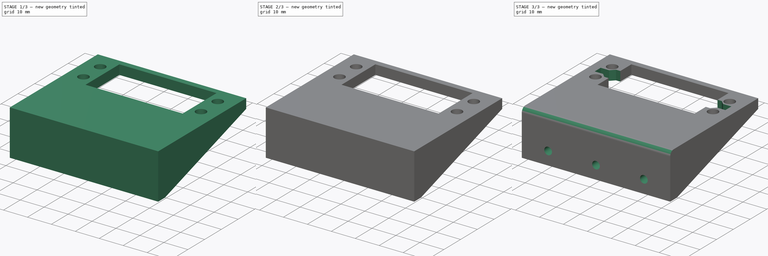
[diagram: build sequence overview — one tinted view per stage of 3, left to right]
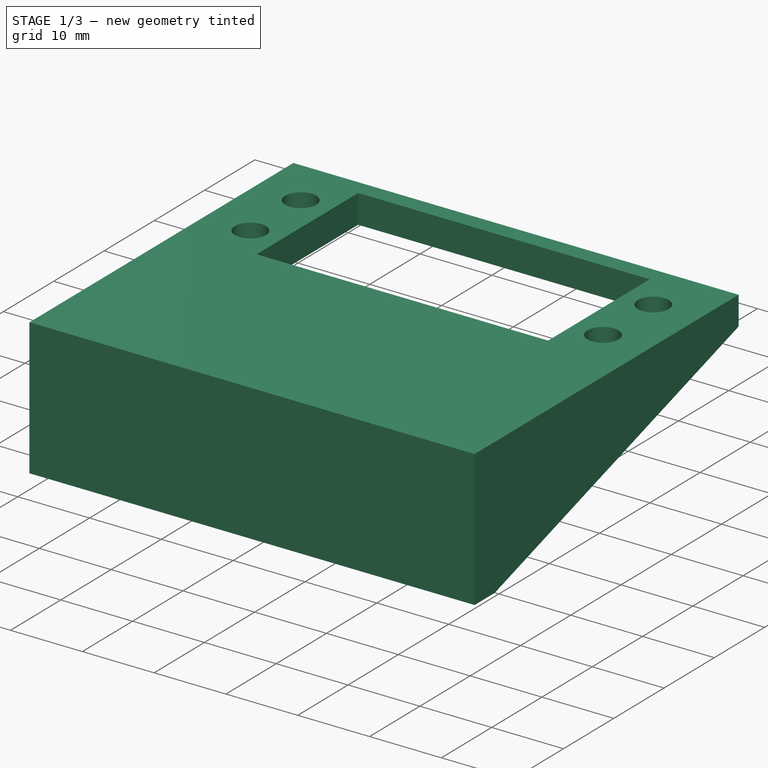
[diagram: stage 1 of 3 — iso view after this stage's code; geometry added in this stage tinted green]
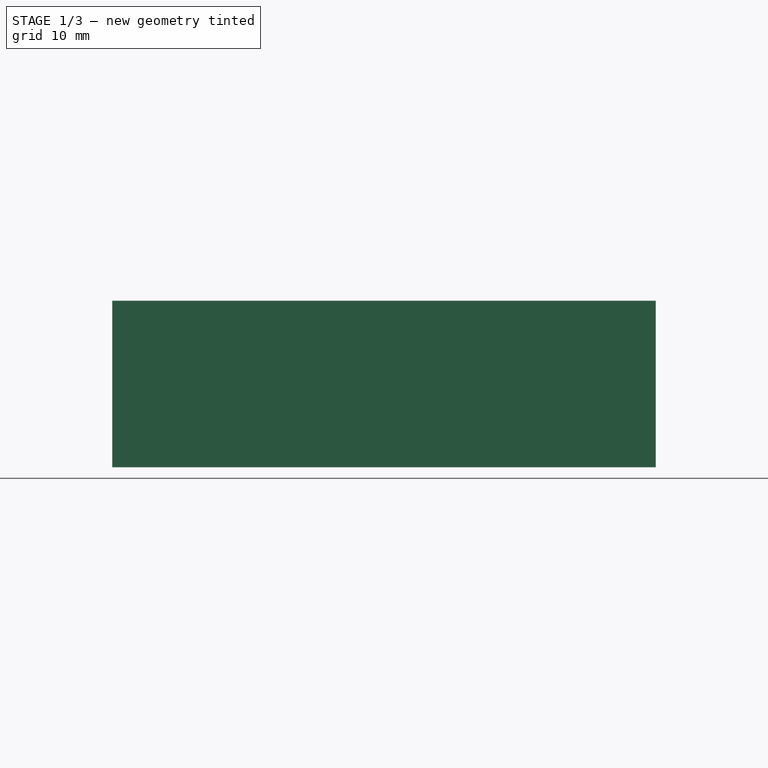
[diagram: stage 1 of 3 — front view after this stage's code; geometry added in this stage tinted green]
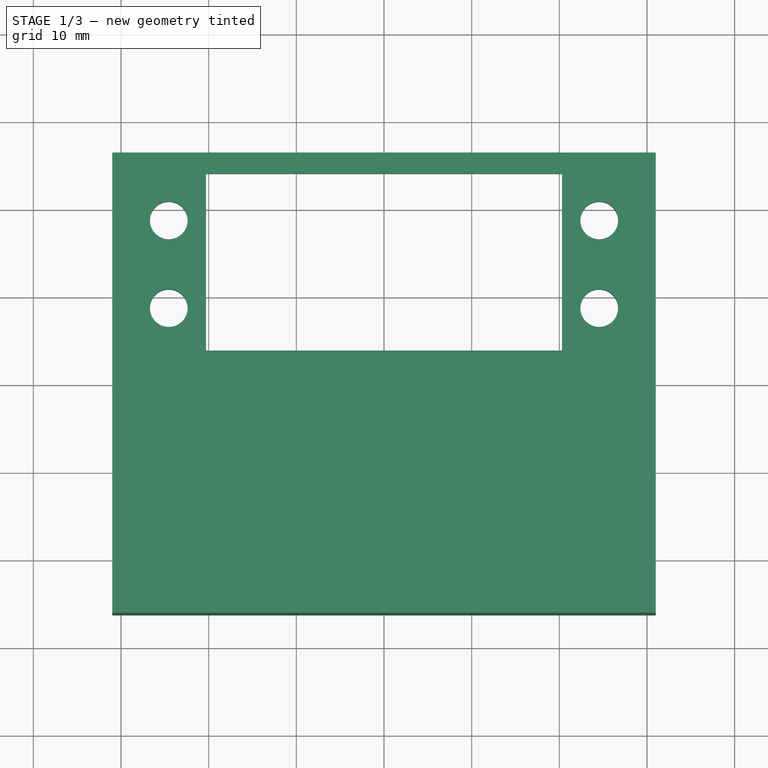
[diagram: stage 1 of 3 — top view after this stage's code; geometry added in this stage tinted green]
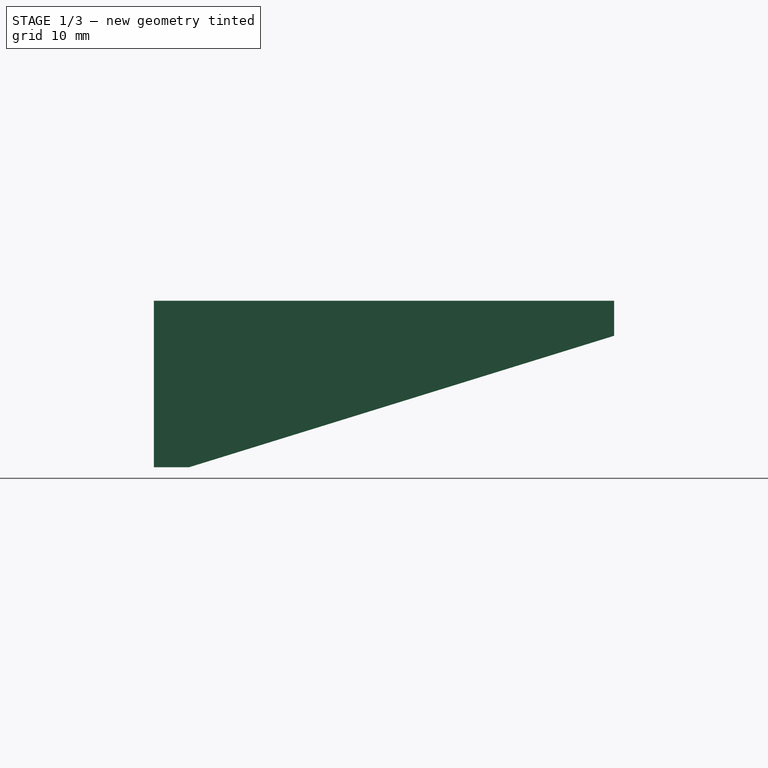
[diagram: stage 1 of 3 — right view after this stage's code; geometry added in this stage tinted green]
FCSTD DOCUMENT  (FreeCAD 1.0R39109 (Git))
Label: servo_support
License: All rights reserved
LicenseURL: http://en.wikipedia.org/wiki/All_rights_reserved
objects: Sketcher::SketchObject×5, PartDesign::Pad×3, PartDesign::Fillet×2, PartDesign::Pocket×2, PartDesign::Mirrored×1, PartDesign::Body×1
note: 34 computed .brp shape members not serialized (recipe doc carries the construction recipe); baked Part::Feature solids carry a one-line shape summary decoded from their .brp

FEATURE [Sketcher::SketchObject] Sketch
  ArcFitTolerance = 1e-06
  AttachmentSupport = -> [XY_Plane]
  FullyConstrained = true
  MakeInternals = false
  MapMode = 5
  sketch-geometry (21):
    g0: LineSegment StartX=-31 StartY=26.25 StartZ=0 EndX=-31 EndY=-26.25 EndZ=0
    g1: LineSegment StartX=-31 StartY=-26.25 StartZ=0 EndX=31 EndY=-26.25 EndZ=0
    g2: LineSegment StartX=31 StartY=-26.25 StartZ=0 EndX=31 EndY=26.25 EndZ=0
    g3: LineSegment StartX=31 StartY=26.25 StartZ=0 EndX=-31 EndY=26.25 EndZ=0
    g4: GeomPoint [constr] X=0 Y=0 Z=0
    g5: LineSegment [constr] StartX=0 StartY=26.25 StartZ=0 EndX=0 EndY=1.25 EndZ=0
    g6: Circle CenterX=-24.55 CenterY=18.5 CenterZ=0 NormalX=0 NormalY=0 NormalZ=1 AngleXU=0 Radius=2.15
    g7: Circle CenterX=-24.55 CenterY=8.5 CenterZ=0 NormalX=0 NormalY=0 NormalZ=1 AngleXU=0 Radius=2.15
    g8: Circle CenterX=24.55 CenterY=18.5 CenterZ=0 NormalX=0 NormalY=0 NormalZ=1 AngleXU=0 Radius=2.15
    g9: Circle CenterX=24.55 CenterY=8.5 CenterZ=0 NormalX=0 NormalY=0 NormalZ=1 AngleXU=0 Radius=2.15
    g10: LineSegment [constr] StartX=-24.55 StartY=18.5 StartZ=0 EndX=-24.55 EndY=8.5 EndZ=0
    g11: LineSegment [constr] StartX=-24.55 StartY=8.5 StartZ=0 EndX=24.55 EndY=8.5 EndZ=0
    g12: LineSegment [constr] StartX=24.55 StartY=8.5 StartZ=0 EndX=24.55 EndY=18.5 EndZ=0
    g13: LineSegment [constr] StartX=24.55 StartY=18.5 StartZ=0 EndX=-24.55 EndY=18.5 EndZ=0
    g14: LineSegment [constr] StartX=-27.8 StartY=25.75 StartZ=0 EndX=27.8 EndY=25.75 EndZ=0
    g15: GeomPoint [constr] X=0 Y=13.75 Z=0
    g16: LineSegment StartX=-20.3 StartY=23.85 StartZ=0 EndX=-20.3 EndY=3.65 EndZ=0
    g17: LineSegment StartX=-20.3 StartY=3.65 StartZ=0 EndX=20.3 EndY=3.65 EndZ=0
    g18: LineSegment StartX=20.3 StartY=3.65 StartZ=0 EndX=20.3 EndY=23.85 EndZ=0
    g19: LineSegment StartX=20.3 StartY=23.85 StartZ=0 EndX=-20.3 EndY=23.85 EndZ=0
    g20: GeomPoint [constr] X=0 Y=13.75 Z=0
  constraints (50):
    c: Coincident(g0,g1)
    c: Coincident(g1,g2)
    c: Coincident(g2,g3)
    c: Coincident(g3,g0)
    c: Vertical(g0)
    c: Vertical(g2)
    c: Horizontal(g1)
    c: Horizontal(g3)
    c: Symmetric(g2,g0,g4)
    c: Coincident(g4,g-1)
    c: DistanceX(g3,g3) = 62
    c: Symmetric(g3,g3,g5)
    c: PointOnObject(g5,g-2)
    c: DistanceY(g5,g5) = 25
    c: Equal(g6,g7)
    c: Equal(g7,g9)
    c: Equal(g9,g8)
    c: Coincident(g10,g6)
    c: Coincident(g10,g7)
    c: Vertical(g10)
    c: Coincident(g10,g11)
    c: Coincident(g11,g9)
    c: Horizontal(g11)
    c: Coincident(g11,g12)
    c: Coincident(g12,g8)
    c: Vertical(g12)
    c: Coincident(g12,g13)
    c: Coincident(g13,g10)
    c: Radius(g8) = 2.15
    c: Symmetric(g14,g14,g-2)
    c: DistanceX(g14,g14) = 55.6
    c: DistanceY(g14,g2) = 0.5
    c: DistanceX(g8,g14) = 3.25
    c: Symmetric(g6,g8,g-2)
    c: DistanceY(g8,g14) = 7.25
    c: DistanceY(g5,g9) = 7.25
    c: Symmetric(g5,g5,g15)
    c: Coincident(g16,g17)
    c: Coincident(g17,g18)
    c: Coincident(g18,g19)
    c: Coincident(g19,g16)
    c: Vertical(g16)
    c: Vertical(g18)
    c: Horizontal(g17)
    c: Horizontal(g19)
    c: Symmetric(g18,g16,g20)
    c: Coincident(g20,g15)
    c: DistanceY(g18,g18) = 20.2
    c: DistanceX(g19,g19) = 40.6
    c: DistanceY(g1,g15) = 40
FEATURE [PartDesign::Pad] Pad  label="BasePad"
  Direction = (0,0,1)
  Length = 4
  Length2 = 10
  Profile = -> Sketch
  ReferenceAxis = -> Sketch [N_Axis]
  Refine = true
  Suppressed = false
  Type = 0
FEATURE [Sketcher::SketchObject] Sketch001
  ArcFitTolerance = 1e-06
  AttachmentSupport = -> [Pad]
  ExternalGeometry = -> [Pad]
  FullyConstrained = true
  MakeInternals = false
  MapMode = 5
  Placement = pos=(0,0,0) rot=(1,0,0;3.14159rad)
  sketch-geometry (4):
    g0: LineSegment StartX=-31 StartY=26.25 StartZ=0 EndX=-31 EndY=22.25 EndZ=0
    g1: LineSegment StartX=-31 StartY=22.25 StartZ=0 EndX=31 EndY=22.25 EndZ=0
    g2: LineSegment StartX=31 StartY=22.25 StartZ=0 EndX=31 EndY=26.25 EndZ=0
    g3: LineSegment StartX=31 StartY=26.25 StartZ=0 EndX=-31 EndY=26.25 EndZ=0
  constraints (11):
    c: Coincident(g0,g1)
    c: Coincident(g1,g2)
    c: Coincident(g2,g3)
    c: Coincident(g3,g0)
    c: Vertical(g0)
    c: Vertical(g2)
    c: Horizontal(g1)
    c: Horizontal(g3)
    c: Coincident(g0,g-3)
    c: Vertical(g-3,g1)
    c: DistanceY(g2,g2) = 4
FEATURE [PartDesign::Pad] Pad001  label="PlatformPad"
  BaseFeature = -> Pad
  Direction = (0,0,-1)
  Length = 15
  Length2 = 10
  Profile = -> Sketch001
  ReferenceAxis = -> Sketch001 [N_Axis]
  Refine = true
  Suppressed = false
  Type = 0
FEATURE [Sketcher::SketchObject] Sketch002
  ArcFitTolerance = 1e-06
  AttachmentSupport = -> [Pad001]
  ExternalGeometry = -> [Pad001]
  FullyConstrained = true
  MakeInternals = false
  MapMode = 5
  Placement = pos=(31,0,0) rot=(0.57735,0.57735,0.57735;2.0944rad)
  sketch-geometry (3):
    g0: LineSegment StartX=-22.25 StartY=0 StartZ=0 EndX=-22.25 EndY=-15 EndZ=0
    g1: LineSegment StartX=-22.25 StartY=-15 StartZ=0 EndX=26.25 EndY=0 EndZ=0
    g2: LineSegment StartX=26.25 StartY=0 StartZ=0 EndX=-22.25 EndY=0 EndZ=0
  constraints (6):
    c: Coincident(g-4,g0)
    c: Coincident(g0,g-3)
    c: Coincident(g0,g1)
    c: Coincident(g1,g-4)
    c: Coincident(g1,g2)
    c: Coincident(g2,g0)
FEATURE [PartDesign::Pad] Pad002  label="ReinforcementPad"
  BaseFeature = -> Pad001
  Direction = (1,0,0)
  Length = 1
  Length2 = 10
  Profile = -> Sketch002
  ReferenceAxis = -> Sketch002 [N_Axis]
  Refine = true
  Reversed = true
  Suppressed = false
  Type = 0
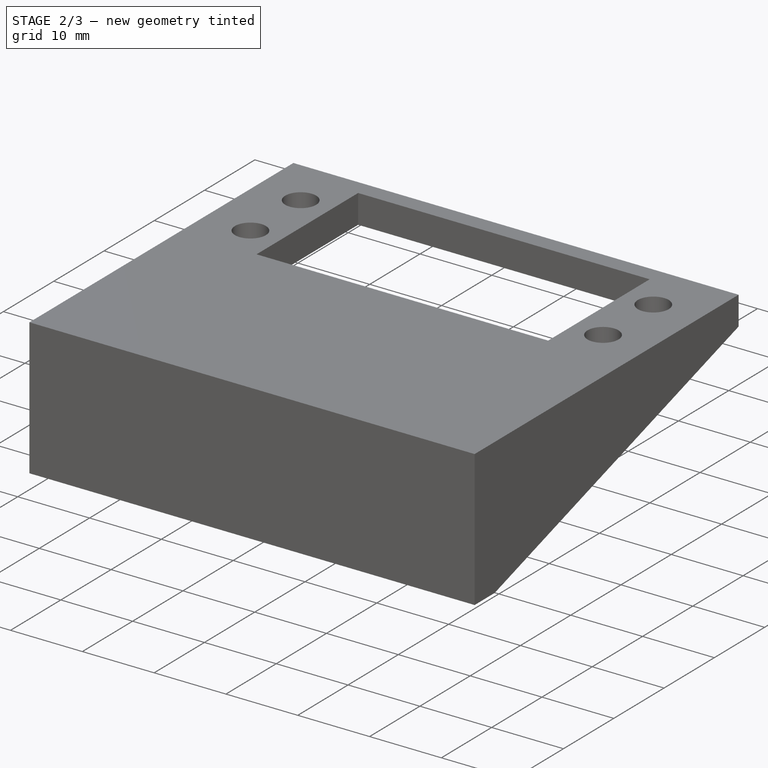
[diagram: stage 2 of 3 — iso view after this stage's code; geometry added in this stage tinted green]
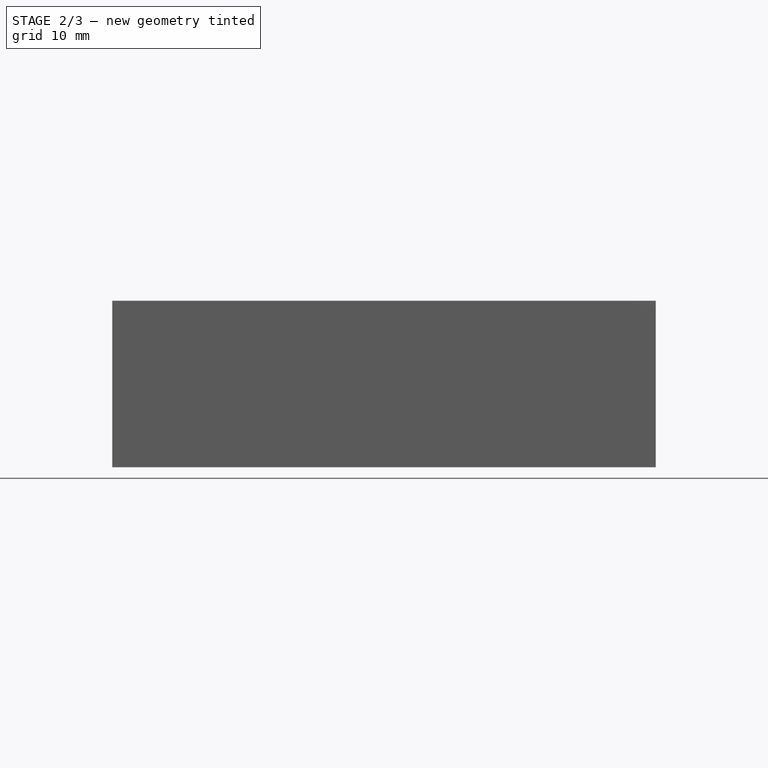
[diagram: stage 2 of 3 — front view after this stage's code; geometry added in this stage tinted green]
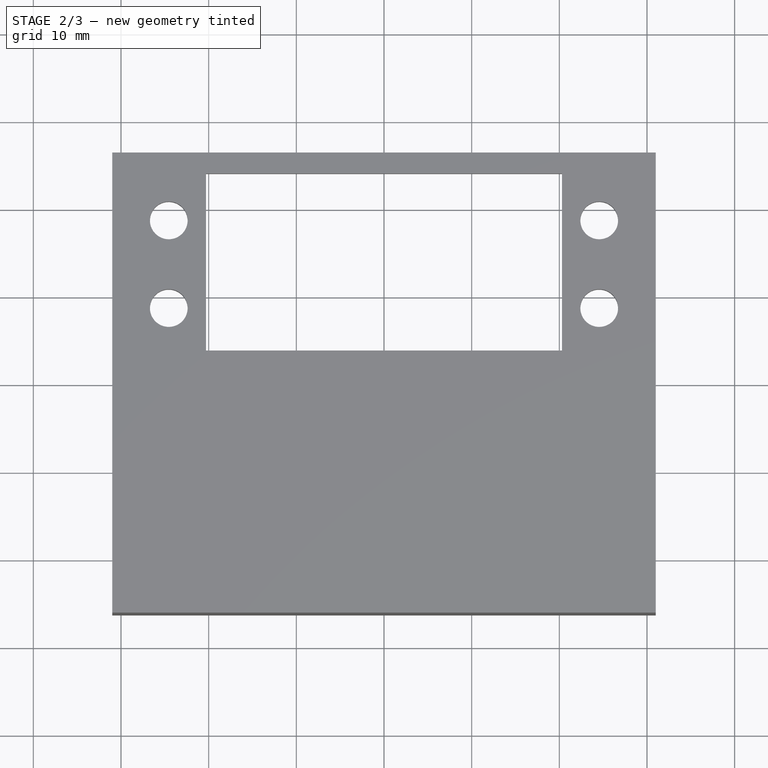
[diagram: stage 2 of 3 — top view after this stage's code; geometry added in this stage tinted green]
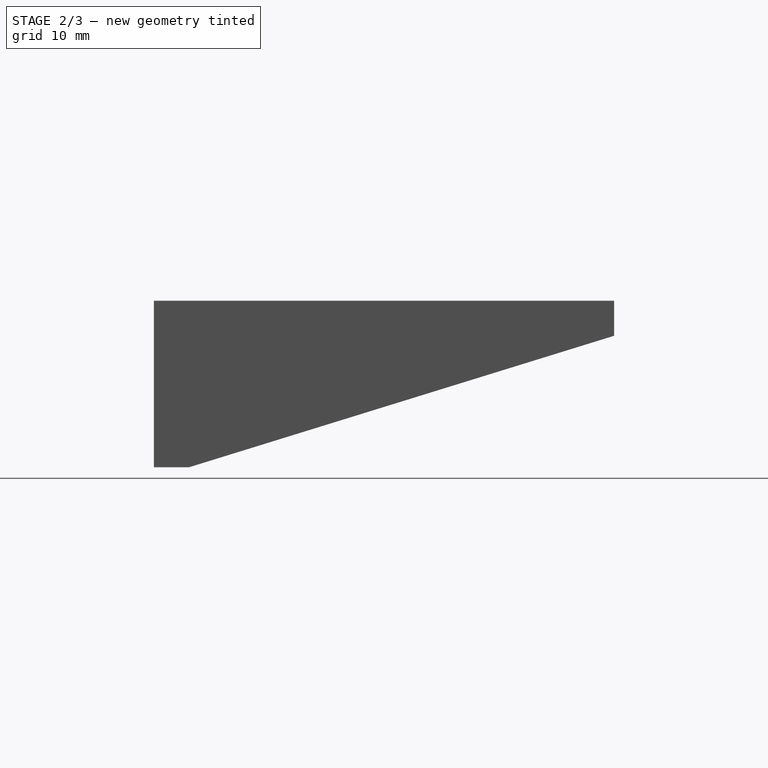
[diagram: stage 2 of 3 — right view after this stage's code; geometry added in this stage tinted green]
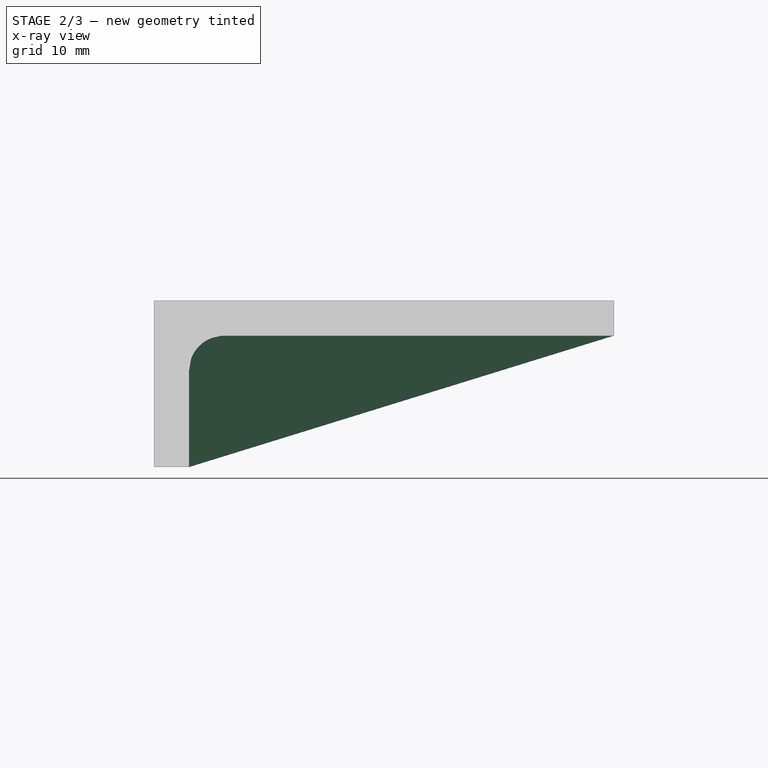
[diagram: stage 2 of 3 — x-ray composite at the right view; earlier geometry ghosted, this stage's added geometry solid]
FEATURE [PartDesign::Mirrored] Mirrored  label="ReinforcementMirror"
  BaseFeature = -> Pad002
  MirrorPlane = -> YZ_Plane
  Originals = -> [Pad002]
  Refine = true
  Suppressed = false
  TransformMode = 0
FEATURE [PartDesign::Fillet] Fillet  label="ReinforcementFillet"
  Base = -> Mirrored [Edge14]
  BaseFeature = -> Mirrored
  Radius = 4
  Refine = true
  SupportTransform = false
  Suppressed = false
  UseAllEdges = false
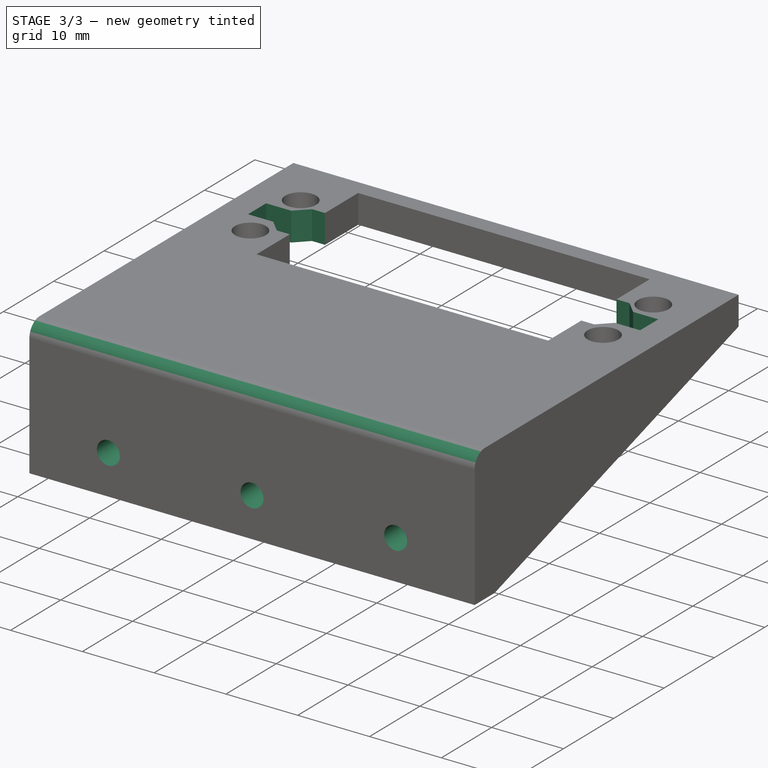
[diagram: stage 3 of 3 — iso view after this stage's code; geometry added in this stage tinted green]
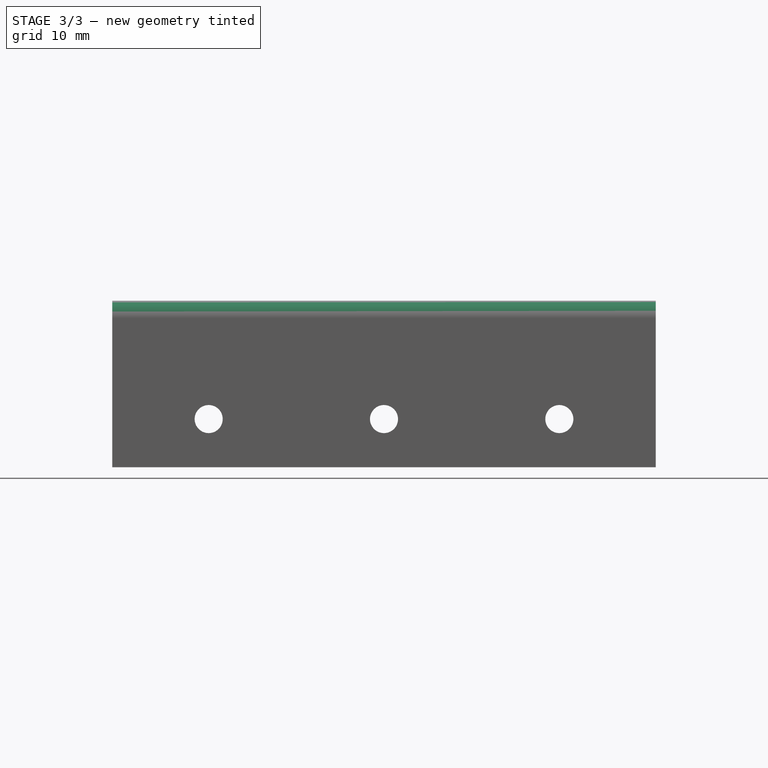
[diagram: stage 3 of 3 — front view after this stage's code; geometry added in this stage tinted green]
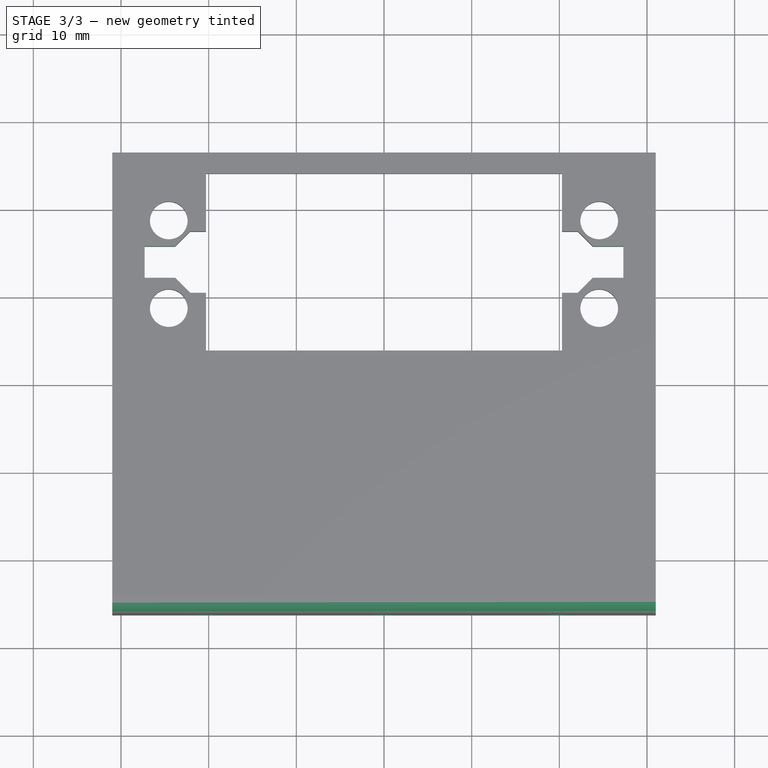
[diagram: stage 3 of 3 — top view after this stage's code; geometry added in this stage tinted green]
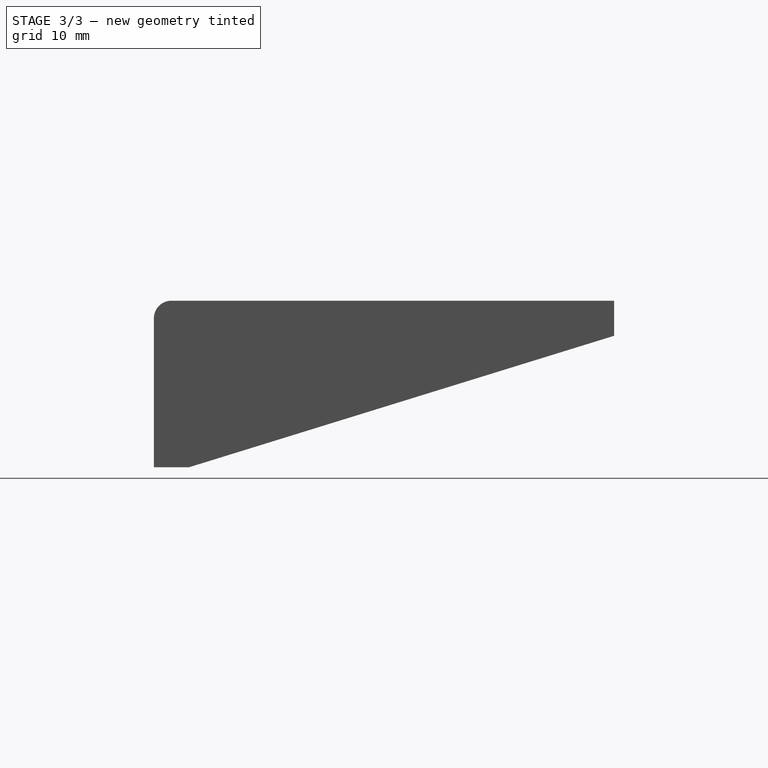
[diagram: stage 3 of 3 — right view after this stage's code; geometry added in this stage tinted green]
FEATURE [Sketcher::SketchObject] Sketch003
  ArcFitTolerance = 1e-06
  AttachmentSupport = -> [Fillet]
  ExternalGeometry = -> [Fillet]
  FullyConstrained = true
  MakeInternals = false
  MapMode = 5
  Placement = pos=(0,-22.25,0) rot=(0,0.707107,0.707107;3.14159rad)
  sketch-geometry (4):
    g0: Circle CenterX=-20 CenterY=-9.5 CenterZ=0 NormalX=0 NormalY=0 NormalZ=1 AngleXU=0 Radius=1.6
    g1: Circle CenterX=20 CenterY=-9.5 CenterZ=0 NormalX=0 NormalY=0 NormalZ=1 AngleXU=0 Radius=1.6
    g2: Circle CenterX=4.1e-15 CenterY=-9.5 CenterZ=0 NormalX=0 NormalY=0 NormalZ=1 AngleXU=0 Radius=1.6
    g3: LineSegment [constr] StartX=8.1e-15 StartY=-4 StartZ=0 EndX=1e-16 EndY=-15 EndZ=0
  constraints (9):
    c: Symmetric(g1,g0,g-2)
    c: Equal(g1,g0)
    c: Radius(g0) = 1.6
    c: Equal(g2,g0)
    c: Horizontal(g2,g0)
    c: DistanceX(g2,g1) = 20
    c: Symmetric(g-5,g-5,g3)
    c: Symmetric(g-4,g-4,g3)
    c: Symmetric(g3,g3,g2)
FEATURE [PartDesign::Pocket] Pocket  label="BaseScrewPockets"
  BaseFeature = -> Fillet
  Direction = (0,-1,2e-16)
  Length = 5
  Length2 = 5
  Profile = -> Sketch003
  ReferenceAxis = -> Sketch003 [N_Axis]
  Refine = true
  Suppressed = false
  Type = 1
FEATURE [Sketcher::SketchObject] Sketch005
  ArcFitTolerance = 1e-06
  AttachmentSupport = -> [Pocket]
  ExternalGeometry = -> [Pocket]
  FullyConstrained = true
  MakeInternals = false
  MapMode = 5
  Placement = pos=(0,0,4) rot=(0,0,1;0rad)
  sketch-geometry (20):
    g0: LineSegment StartX=-20.3 StartY=17.25 StartZ=0 EndX=-22.1 EndY=17.25 EndZ=0
    g1: LineSegment StartX=-22.1 StartY=17.25 StartZ=0 EndX=-23.8 EndY=15.55 EndZ=0
    g2: LineSegment StartX=-23.8 StartY=15.55 StartZ=0 EndX=-27.3 EndY=15.55 EndZ=0
    g3: LineSegment StartX=-27.3 StartY=15.55 StartZ=0 EndX=-27.3 EndY=11.95 EndZ=0
    g4: LineSegment StartX=-27.3 StartY=11.95 StartZ=0 EndX=-23.8 EndY=11.95 EndZ=0
    g5: LineSegment StartX=-23.8 StartY=11.95 StartZ=0 EndX=-22.1 EndY=10.25 EndZ=0
    g6: LineSegment StartX=-22.1 StartY=10.25 StartZ=0 EndX=-20.3 EndY=10.25 EndZ=0
    g7: LineSegment StartX=-20.3 StartY=10.25 StartZ=0 EndX=-20.3 EndY=17.25 EndZ=0
    g8: GeomPoint X=-20.3 Y=13.75 Z=0
    g9: LineSegment [constr] StartX=-20.3 StartY=13.75 StartZ=0 EndX=-27.3 EndY=13.75 EndZ=0
    g10: LineSegment StartX=20.3 StartY=17.25 StartZ=0 EndX=22.1 EndY=17.25 EndZ=0
    g11: LineSegment StartX=22.1 StartY=17.25 StartZ=0 EndX=23.8 EndY=15.55 EndZ=0
    g12: LineSegment StartX=23.8 StartY=15.55 StartZ=0 EndX=27.3 EndY=15.55 EndZ=0
    g13: LineSegment StartX=27.3 StartY=15.55 StartZ=0 EndX=27.3 EndY=11.95 EndZ=0
    g14: LineSegment StartX=27.3 StartY=11.95 StartZ=0 EndX=23.8 EndY=11.95 EndZ=0
    g15: LineSegment StartX=23.8 StartY=11.95 StartZ=0 EndX=22.1 EndY=10.25 EndZ=0
    g16: LineSegment StartX=22.1 StartY=10.25 StartZ=0 EndX=20.3 EndY=10.25 EndZ=0
    g17: LineSegment StartX=20.3 StartY=10.25 StartZ=0 EndX=20.3 EndY=17.25 EndZ=0
    g18: GeomPoint X=20.3 Y=13.75 Z=0
    g19: LineSegment [constr] StartX=20.3 StartY=13.75 StartZ=0 EndX=27.3 EndY=13.75 EndZ=0
  constraints (49):
    c: PointOnObject(g0,g-3)
    c: Horizontal(g0)
    c: Coincident(g0,g1)
    c: Coincident(g1,g2)
    c: Coincident(g2,g3)
    c: Vertical(g3)
    c: Coincident(g3,g4)
    c: Coincident(g4,g5)
    c: Coincident(g5,g6)
    c: Horizontal(g6)
    c: Coincident(g6,g7)
    c: Coincident(g7,g0)
    c: Symmetric(g7,g7,g8)
    c: Symmetric(g-3,g-3,g8)
    c: Coincident(g9,g8)
    c: Symmetric(g3,g3,g9)
    c: Horizontal(g9)
    c: Horizontal(g4)
    c: Horizontal(g2)
    c: Equal(g1,g5)
    c: Vertical(g5,g0)
    c: DistanceY(g6,g0) = 7
    c: DistanceX(g0,g0) = 1.8
    c: Angle(g1,g2) = 2.35619
    c: DistanceX(g3,g6) = 7
    c: DistanceY(g3,g3) = 3.6
    c: Horizontal(g10)
    c: Coincident(g10,g11)
    c: Coincident(g11,g12)
    c: Coincident(g12,g13)
    c: Vertical(g13)
    c: Coincident(g13,g14)
    c: Coincident(g14,g15)
    c: Coincident(g15,g16)
    c: Horizontal(g16)
    c: Coincident(g16,g17)
    c: Coincident(g17,g10)
    c: Symmetric(g17,g17,g18)
    c: Coincident(g19,g18)
    c: Symmetric(g13,g13,g19)
    c: Horizontal(g19)
    c: Horizontal(g14)
    c: Equal(g11,g15)
    c: Angle(g11,g12) = -2.35619
    c: Symmetric(g10,g0,g-2)
    c: Symmetric(g4,g14,g-2)
    c: Symmetric(g12,g2,g-2)
    c: Symmetric(g11,g1,g-2)
    c: Vertical(g17)
FEATURE [PartDesign::Pocket] Pocket001  label="CablePocket"
  BaseFeature = -> Pocket
  Direction = (0,0,-1)
  Length = 5
  Length2 = 5
  Profile = -> Sketch005
  ReferenceAxis = -> Sketch005 [N_Axis]
  Refine = true
  Suppressed = false
  Type = 1
FEATURE [PartDesign::Fillet] Fillet001  label="BaseFillet"
  Base = -> Pocket001 [Edge103]
  BaseFeature = -> Pocket001
  Radius = 2
  Refine = true
  SupportTransform = false
  Suppressed = false
  UseAllEdges = false
FEATURE [PartDesign::Body] Body  label="servo_support"
  AllowCompound = false
  Group = -> [Sketch,Pad,Sketch001,Pad001,Sketch002,Pad002,Mirrored,Fillet,Sketch003,Pocket,Sketch005,Pocket001,Fillet001]
  Origin = -> Origin
  Tip = -> Fillet001
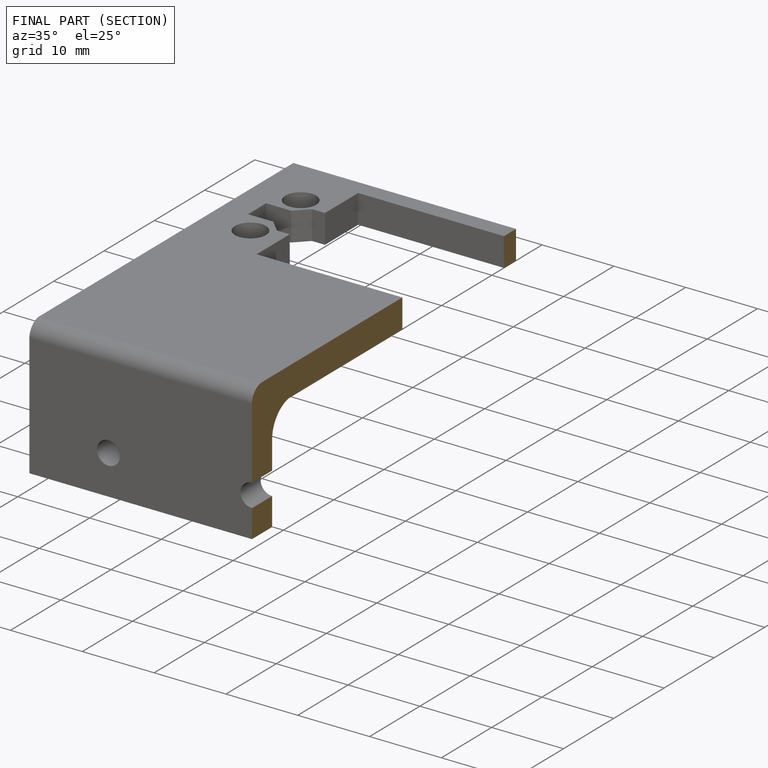
[diagram: finished part — half-section view (interior)]
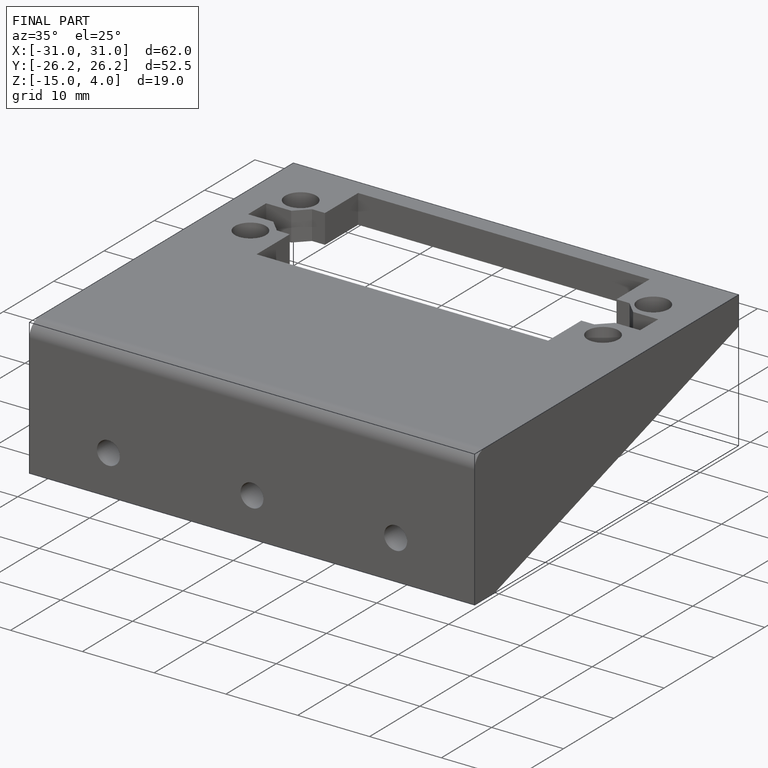
[diagram: finished part — iso view with bounding-box wireframe]
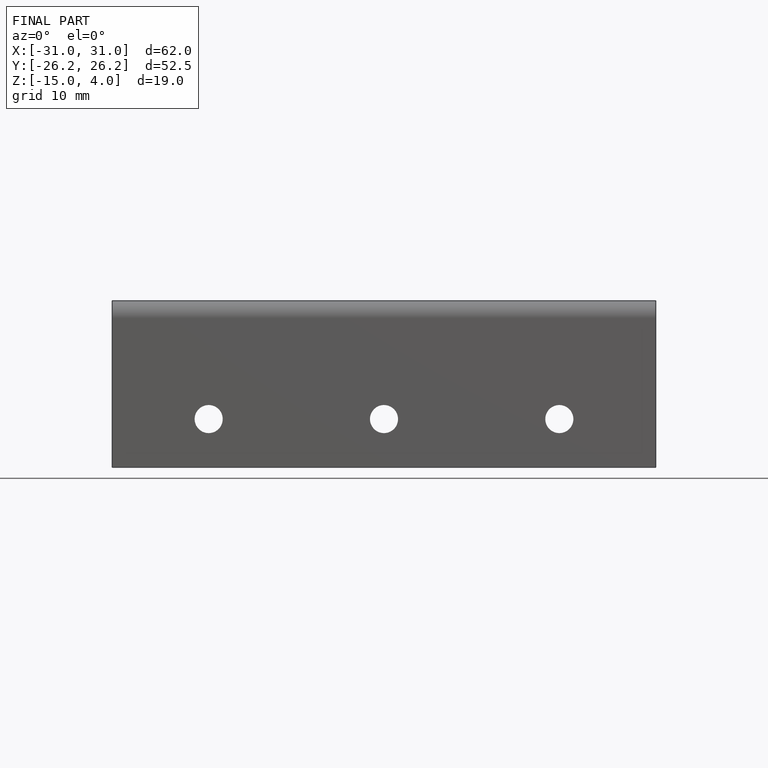
[diagram: finished part — front view with bounding-box wireframe]
